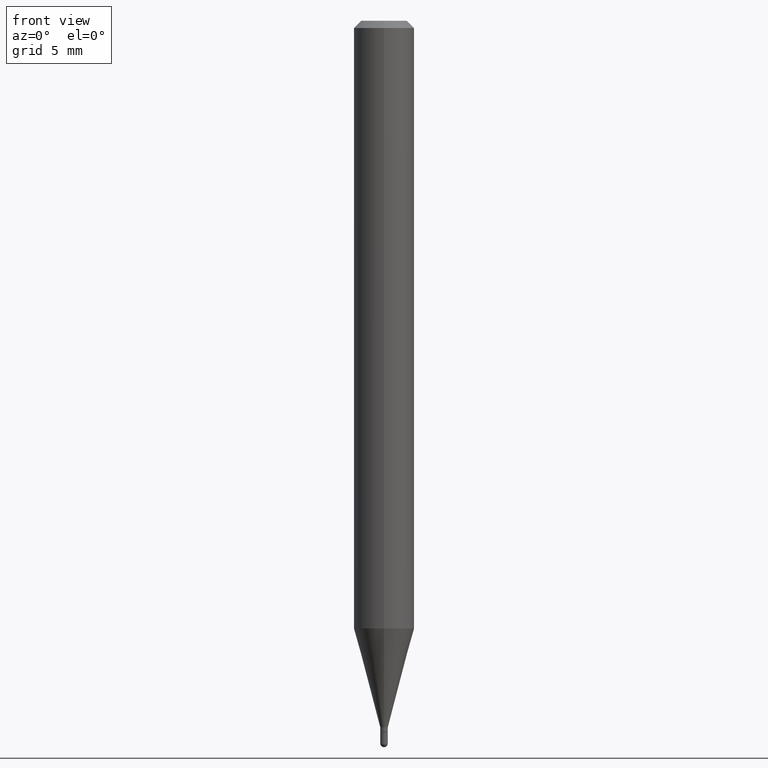
[diagram: clean part render]
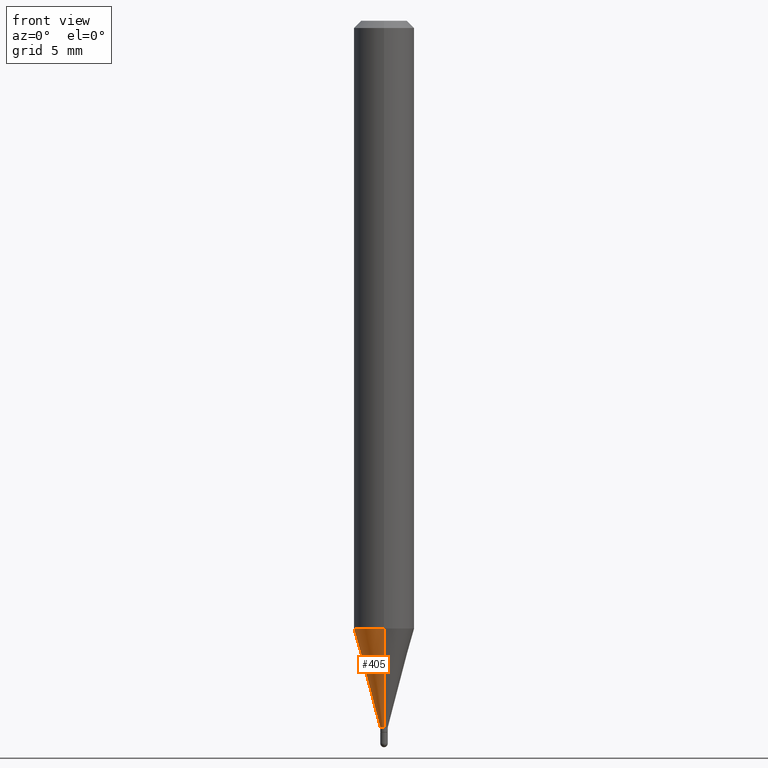
[diagram: same view with one face highlighted and labeled with its STEP entity id]
A machine part, front view. The second image highlights one B-rep face of the part: STEP entity #405.
In plain terms, the highlighted conical surface has half-angle 15 deg.
Its self-contained STEP definition (entity closure, byte-faithful):
#8 = FACE_OUTER_BOUND ( 'NONE', #315, .T. ) ;
#39 = AXIS2_PLACEMENT_3D ( 'NONE', #373, #301, #447 ) ;
#41 = EDGE_CURVE ( 'NONE', #463, #117, #324, .T. ) ;
#44 = DIRECTION ( 'NONE',  ( -2.445232611711644986E-29, 3.491819582772540088E-15, 1.000000000000000000 ) ) ;
#56 = CARTESIAN_POINT ( 'NONE',  ( -5.446710888591665753E-17, -0.007800000000005017330, -1.459000000000000297 ) ) ;
#59 = DIRECTION ( 'NONE',  ( -1.807323732225330928E-15, -0.2588190451025182970, 0.9659258262890689783 ) ) ;
#66 = CARTESIAN_POINT ( 'NONE',  ( 4.440892098500930859E-16, 0.06249999999999560074, -1.254856820825983377 ) ) ;
#86 = ORIENTED_EDGE ( 'NONE', *, *, #280, .T. ) ;
#100 = CARTESIAN_POINT ( 'NONE',  ( 5.542233338932293475E-17, 0.007799999999994828431, -1.459000000000000297 ) ) ;
#117 = VERTEX_POINT ( 'NONE', #395 ) ;
#124 = VECTOR ( 'NONE', #408, 39.37007874015748143 ) ;
#138 = LINE ( 'NONE', #56, #361 ) ;
#167 = CARTESIAN_POINT ( 'NONE',  ( 3.567594380487290426E-29, -5.094564771265136885E-15, -1.459000000000000297 ) ) ;
#190 = CARTESIAN_POINT ( 'NONE',  ( 3.068416821312490744E-29, -4.381733620535860243E-15, -1.254856820825983155 ) ) ;
#194 = CIRCLE ( 'NONE', #368, 0.007799999999999922447 ) ;
#226 = VERTEX_POINT ( 'NONE', #483 ) ;
#278 = AXIS2_PLACEMENT_3D ( 'NONE', #190, #349, #500 ) ;
#280 = EDGE_CURVE ( 'NONE', #226, #402, #194, .T. ) ;
#301 = DIRECTION ( 'NONE',  ( -2.445232611711644986E-29, 3.491819582772540088E-15, 1.000000000000000000 ) ) ;
#315 = EDGE_LOOP ( 'NONE', ( #374, #86, #439, #381 ) ) ;
#324 = CIRCLE ( 'NONE', #278, 0.06250000000000000000 ) ;
#349 = DIRECTION ( 'NONE',  ( -2.445232611711644986E-29, 3.491819582772540088E-15, 1.000000000000000000 ) ) ;
#361 = VECTOR ( 'NONE', #59, 39.37007874015748143 ) ;
#365 = CARTESIAN_POINT ( 'NONE',  ( -5.446710888591665753E-17, -0.007800000000005017330, -1.459000000000000297 ) ) ;
#368 = AXIS2_PLACEMENT_3D ( 'NONE', #167, #44, #477 ) ;
#373 = CARTESIAN_POINT ( 'NONE',  ( 3.567594380487290426E-29, -5.094564771265136885E-15, -1.459000000000000297 ) ) ;
#374 = ORIENTED_EDGE ( 'NONE', *, *, #469, .F. ) ;
#376 = LINE ( 'NONE', #100, #124 ) ;
#381 = ORIENTED_EDGE ( 'NONE', *, *, #41, .F. ) ;
#395 = CARTESIAN_POINT ( 'NONE',  ( -4.364351673553610024E-16, -0.06250000000000438538, -1.254856820825982933 ) ) ;
#402 = VERTEX_POINT ( 'NONE', #365 ) ;
#405 = ADVANCED_FACE ( 'NONE', ( #8 ), #433, .T. ) ;
#408 = DIRECTION ( 'NONE',  ( 1.839019923739601104E-15, 0.2588190451025250693, 0.9659258262890670910 ) ) ;
#418 = EDGE_CURVE ( 'NONE', #402, #117, #138, .T. ) ;
#433 = CONICAL_SURFACE ( 'NONE', #39, 0.007799999999999922447, 0.2617993877991502960 ) ;
#439 = ORIENTED_EDGE ( 'NONE', *, *, #418, .T. ) ;
#447 = DIRECTION ( 'NONE',  ( -6.982962677686265922E-15, -1.000000000000000000, 0.000000000000000000 ) ) ;
#463 = VERTEX_POINT ( 'NONE', #66 ) ;
#469 = EDGE_CURVE ( 'NONE', #226, #463, #376, .T. ) ;
#477 = DIRECTION ( 'NONE',  ( -6.982962677686265922E-15, -1.000000000000000000, 0.000000000000000000 ) ) ;
#483 = CARTESIAN_POINT ( 'NONE',  ( 2.497557716197082045E-16, 0.007799999999994826697, -1.459000000000000297 ) ) ;
#500 = DIRECTION ( 'NONE',  ( -6.982962677686265922E-15, -1.000000000000000000, 4.370956789862821150E-15 ) ) ;